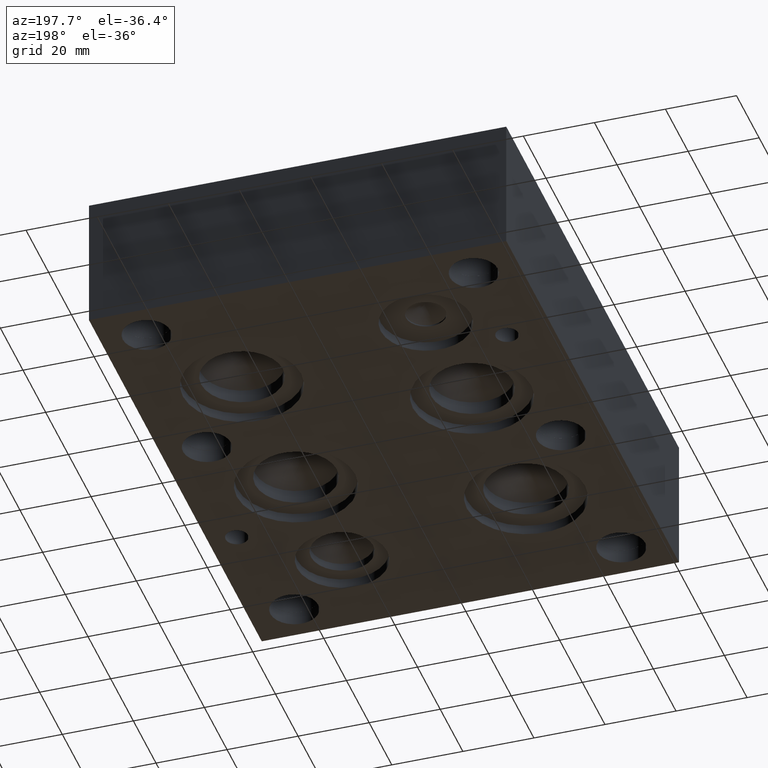
[diagram: clean part render]
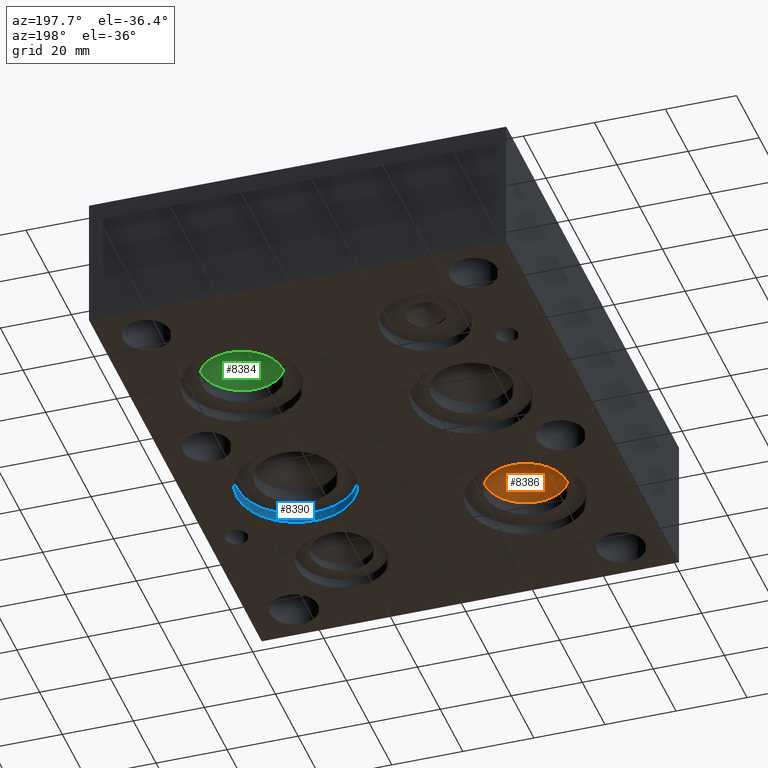
[diagram: same view with three faces highlighted in distinct colors, each labeled with its STEP entity id]
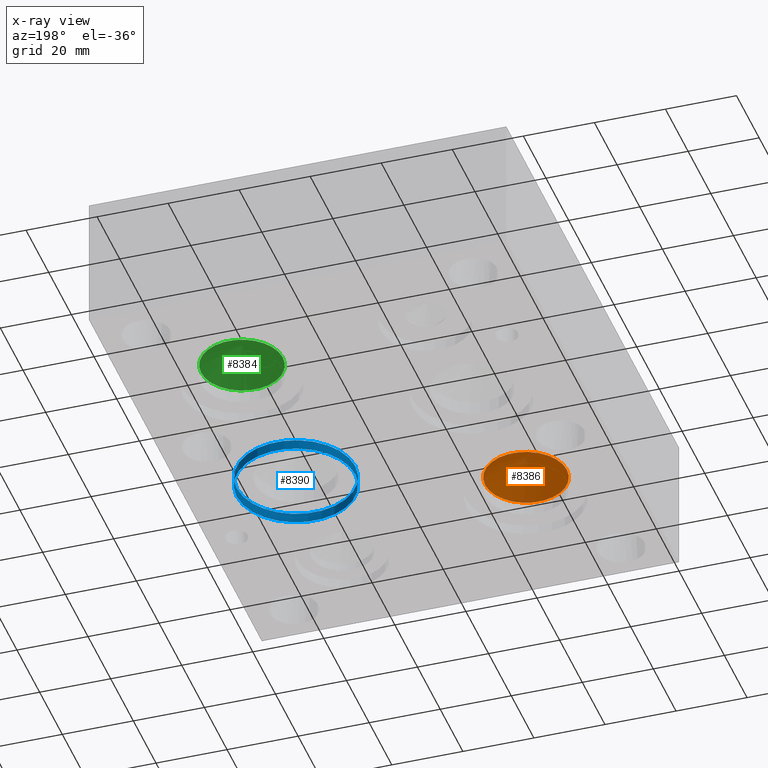
[diagram: x-ray of the same camera — body ghosted, the three highlighted faces saturated]
A machine part, auxiliary view with three faces highlighted in distinct colors.
The next image is the same camera in x-ray (body ghosted, the three faces saturated) — at least one of them is partly hidden behind the body in this view.
Their STEP definitions:

[orange] entity #8386 — the highlighted conical surface has half-angle 60 deg.
#74=CIRCLE('',#8768,11.5062);
#163=CONICAL_SURFACE('',#8767,5.7531,1.0471975511966);
#916=FACE_OUTER_BOUND('',#1396,.T.);
#1396=EDGE_LOOP('',(#7071,#7072,#7073));
#2300=LINE('',#13911,#3148);
#3148=VECTOR('',#10289,5.7531);
#3873=VERTEX_POINT('',#13908);
#3874=VERTEX_POINT('',#13910);
#4964=EDGE_CURVE('',#3873,#3873,#74,.T.);
#4965=EDGE_CURVE('',#3873,#3874,#2300,.T.);
#7071=ORIENTED_EDGE('',*,*,#4964,.T.);
#7072=ORIENTED_EDGE('',*,*,#4965,.T.);
#7073=ORIENTED_EDGE('',*,*,#4965,.F.);
#8386=ADVANCED_FACE('',(#916),#163,.F.);
#8767=AXIS2_PLACEMENT_3D('',#13907,#10285,#10286);
#8768=AXIS2_PLACEMENT_3D('',#13909,#10287,#10288);
#10285=DIRECTION('center_axis',(0.,0.,-1.));
#10286=DIRECTION('ref_axis',(1.,0.,0.));
#10287=DIRECTION('center_axis',(0.,0.,-1.));
#10288=DIRECTION('ref_axis',(1.,0.,0.));
#10289=DIRECTION('',(0.866025403784439,-1.06057523872491E-16,0.5));
#13907=CARTESIAN_POINT('Origin',(30.1752,40.4622,9.96466383367484));
#13908=CARTESIAN_POINT('',(18.669,40.4622,6.64311));
#13909=CARTESIAN_POINT('Origin',(30.1752,40.4622,6.64311));
#13910=CARTESIAN_POINT('',(30.1752,40.4622,13.2862176673497));
#13911=CARTESIAN_POINT('',(24.4221,40.4622,9.96466383367484));

[blue] entity #8390 — the highlighted cylindrical surface (bore or boss wall) has radius 16.6751 mm, axis along (0, 0, -1).
#23=CYLINDRICAL_SURFACE('',#8775,16.6751);
#78=CIRCLE('',#8776,16.6751);
#79=CIRCLE('',#8777,16.6751);
#920=FACE_OUTER_BOUND('',#1401,.T.);
#1401=EDGE_LOOP('',(#7084,#7085,#7086,#7087));
#2303=LINE('',#13927,#3151);
#3151=VECTOR('',#10308,16.6751);
#3878=VERTEX_POINT('',#13924);
#3879=VERTEX_POINT('',#13926);
#4971=EDGE_CURVE('',#3878,#3878,#78,.T.);
#4972=EDGE_CURVE('',#3878,#3879,#2303,.T.);
#4973=EDGE_CURVE('',#3879,#3879,#79,.T.);
#7084=ORIENTED_EDGE('',*,*,#4971,.F.);
#7085=ORIENTED_EDGE('',*,*,#4972,.T.);
#7086=ORIENTED_EDGE('',*,*,#4973,.F.);
#7087=ORIENTED_EDGE('',*,*,#4972,.F.);
#8390=ADVANCED_FACE('',(#920),#23,.F.);
#8775=AXIS2_PLACEMENT_3D('',#13923,#10304,#10305);
#8776=AXIS2_PLACEMENT_3D('',#13925,#10306,#10307);
#8777=AXIS2_PLACEMENT_3D('',#13928,#10309,#10310);
#10304=DIRECTION('center_axis',(0.,0.,-1.));
#10305=DIRECTION('ref_axis',(1.,0.,0.));
#10306=DIRECTION('center_axis',(0.,0.,1.));
#10307=DIRECTION('ref_axis',(1.,0.,0.));
#10308=DIRECTION('',(0.,0.,1.));
#10309=DIRECTION('center_axis',(0.,0.,-1.));
#10310=DIRECTION('ref_axis',(1.,0.,0.));
#13923=CARTESIAN_POINT('Origin',(87.3252,64.2874,1.397));
#13924=CARTESIAN_POINT('',(70.6501,64.2874,0.));
#13925=CARTESIAN_POINT('Origin',(87.3252,64.2874,0.));
#13926=CARTESIAN_POINT('',(70.6501,64.2874,2.794));
#13927=CARTESIAN_POINT('',(70.6501,64.2874,1.397));
#13928=CARTESIAN_POINT('Origin',(87.3252,64.2874,2.794));

[green] entity #8384 — the highlighted conical surface has half-angle 60 deg.
#72=CIRCLE('',#8764,11.5062);
#162=CONICAL_SURFACE('',#8763,5.7531,1.0471975511966);
#914=FACE_OUTER_BOUND('',#1394,.T.);
#1394=EDGE_LOOP('',(#7064,#7065,#7066));
#2298=LINE('',#13902,#3146);
#3146=VECTOR('',#10279,5.7531);
#3870=VERTEX_POINT('',#13899);
#3871=VERTEX_POINT('',#13901);
#4960=EDGE_CURVE('',#3870,#3870,#72,.T.);
#4961=EDGE_CURVE('',#3870,#3871,#2298,.T.);
#7064=ORIENTED_EDGE('',*,*,#4960,.T.);
#7065=ORIENTED_EDGE('',*,*,#4961,.T.);
#7066=ORIENTED_EDGE('',*,*,#4961,.F.);
#8384=ADVANCED_FACE('',(#914),#162,.F.);
#8763=AXIS2_PLACEMENT_3D('',#13898,#10275,#10276);
#8764=AXIS2_PLACEMENT_3D('',#13900,#10277,#10278);
#10275=DIRECTION('center_axis',(0.,0.,-1.));
#10276=DIRECTION('ref_axis',(1.,0.,0.));
#10277=DIRECTION('center_axis',(0.,0.,-1.));
#10278=DIRECTION('ref_axis',(1.,0.,0.));
#10279=DIRECTION('',(0.866025403784439,-1.06057523872491E-16,0.5));
#13898=CARTESIAN_POINT('Origin',(87.3252,111.9124,9.96466383367484));
#13899=CARTESIAN_POINT('',(75.819,111.9124,6.64311));
#13900=CARTESIAN_POINT('Origin',(87.3252,111.9124,6.64311));
#13901=CARTESIAN_POINT('',(87.3252,111.9124,13.2862176673497));
#13902=CARTESIAN_POINT('',(81.5721,111.9124,9.96466383367484));